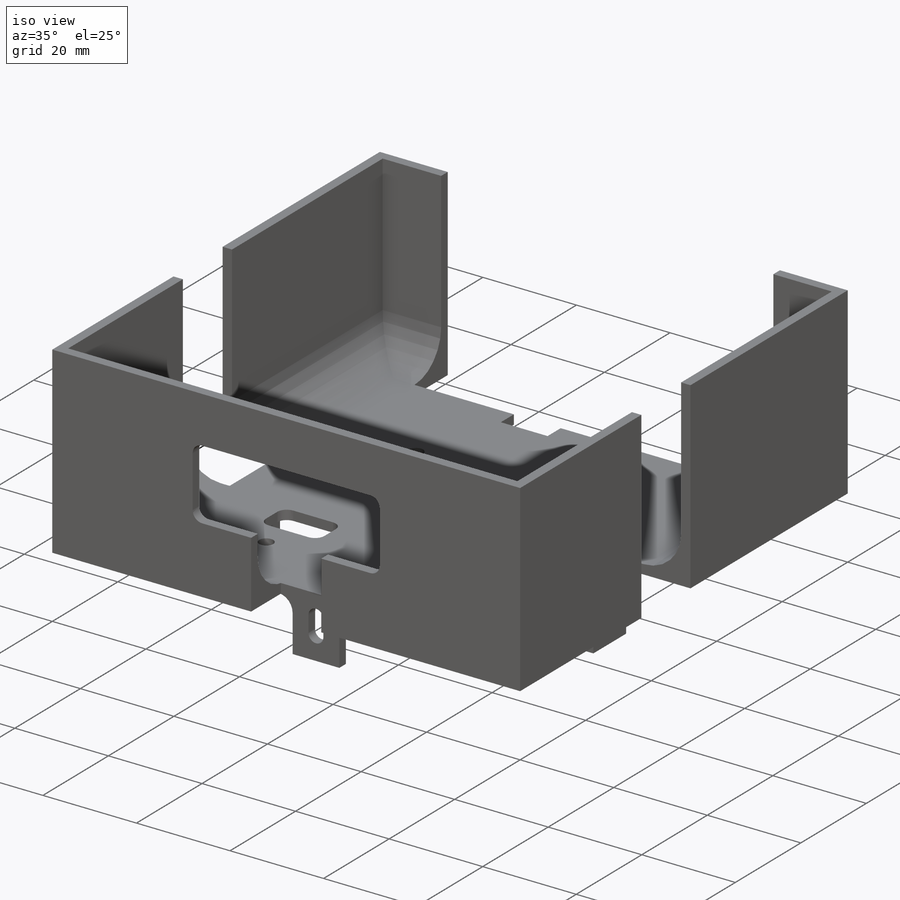
[diagram: iso view]
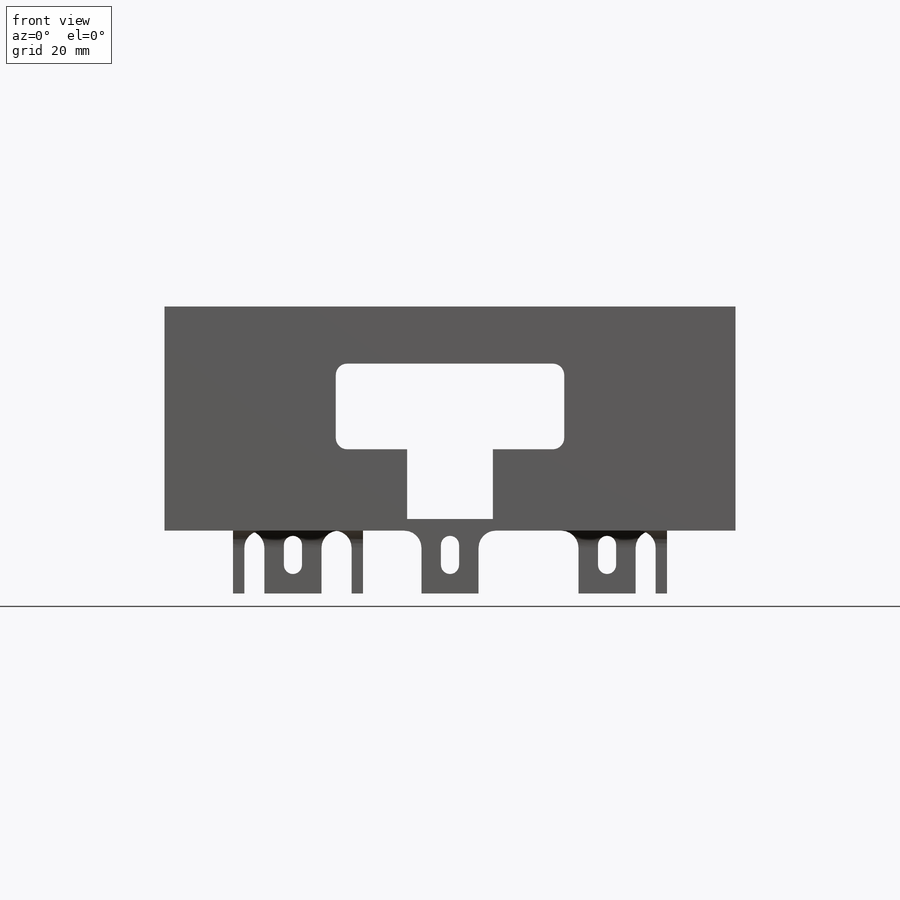
[diagram: front view]
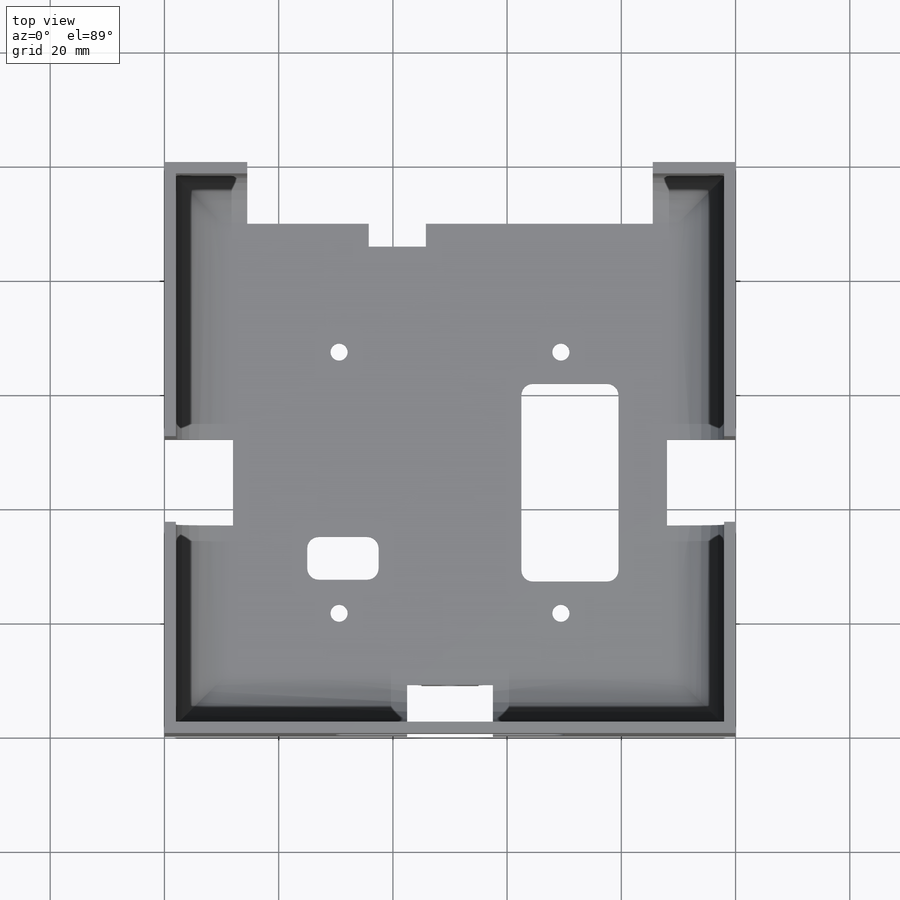
[diagram: top view]
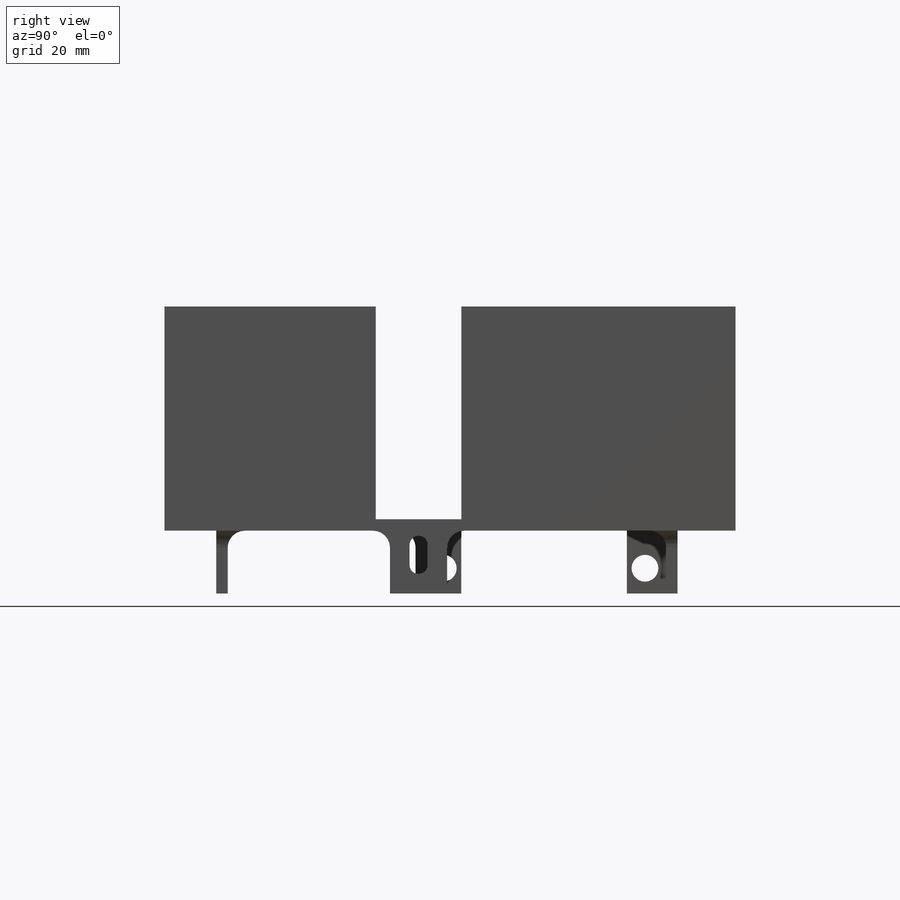
[diagram: right view]
SOLIDWORKS PART (.sldprt)
format: sldprt  version: not decoded by parser v0  size: 731,136 bytes
history: native  units: mm
features: sketch x19, cut_extrude x12, extrude x7, fillet x7, mirror x2, material x1, plane x1 (+13 scaffold rows collapsed)
feature tree (62):
  scaffold x13  (default folders/planes/origin — collapsed)
  material  "Material <not specified>"
  sketch  "Sketch1"  dims[D1=100.0mm D2=100.0mm]
  extrude  "Boss-Extrude1"  Depth=2mm
  sketch  "Sketch2"  dims[D1=2.0mm]
  extrude  "Boss-Extrude2"  Depth=37.25mm
  sketch  "Sketch3"  dims[c1.D1=15.0mm c1.D2=22.0mm c2.D1=14.5mm c2.D2=14.5mm]
  sketch  "Sketch5"  dims[D1=10.17mm D2=22.5mm D3=10.0mm D4=2.0mm]
  extrude  "Boss-Extrude3"  Depth=11mm
  sketch  "Sketch6"  dims[D1=3.18mm D2=2.5mm D3=5.0mm]
  cut_extrude  "Cut-Extrude2"  [1 undecoded]
  fillet  "Fillet1"  Radius=3mm
  plane  "Plane1"
  mirror  "Mirror1"
  cut_extrude  "Cut-Extrude3"  [1 undecoded]
  sketch  "Sketch8"  dims[D1=12.0mm D2=2.0mm D3=10.0mm D4=55.5mm]
  extrude  "Boss-Extrude4"  Depth=11mm
  sketch  "Sketch9"  dims[c1.D1=3.18mm c1.D2=~2.977232mm c1.D3=3.18mm c2.D2=2.5mm c2.D3=5.0mm]
  cut_extrude  "Cut-Extrude4"  [1 undecoded]
  fillet  "Fillet2"  Radius=3mm
  sketch  "Sketch10"  dims[D1=55.5mm D2=15.0mm]
  cut_extrude  "Cut-Extrude5"  [1 undecoded]
  mirror  "Mirror3"
  fillet  "Fillet3"  Radius=8mm
  sketch  "Sketch11"  dims[D1=9.08mm D2=2.0mm D3=10.0mm]
  extrude  "Boss-Extrude5"  Depth=11mm
  sketch  "Sketch12"  dims[c1.D3=3.18mm c1.D4=1.59mm c2.D3=1.59mm c2.D1=2.5mm c2.D2=5.0mm]
  cut_extrude  "Cut-Extrude6"  [1 undecoded]
  fillet  "Fillet4"  Radius=3mm
  sketch  "Sketch13"  dims[D1=15.0mm D2=50.0mm]
  cut_extrude  "Cut-Extrude7"  [1 undecoded]
  sketch  "Sketch15"  dims[D1=65.23mm D2=8.0mm D3=37.85mm D4=2.0mm D5=8.0mm D6=8.85mm]
  extrude  "Boss-Extrude6"  Depth=11mm
  sketch  "Sketch16"  dims[D1=4.7mm D2=6.58mm D3=4.84mm D4=4.84mm]
  cut_extrude  "Cut-Extrude8"  [1 undecoded]
  fillet  "Fillet5"  Radius=3mm
  fillet  "Fillet6"  Radius=2mm
  sketch  "Sketch17"  dims[D1=20.5mm D2=17.0mm D3=34.63mm D4=27.18mm]
  cut_extrude  "Cut-Extrude9"  [1 undecoded]
  sketch  "Sketch18"  dims[D5=3.0mm D1=21.63mm D2=45.74mm D3=38.84mm D4=19.42mm]
  cut_extrude  "Cut-Extrude10"  [1 undecoded]
  sketch  "Sketch19"  dims[D1=12.5mm D2=7.5mm D3=25.0mm D4=27.5mm]
  cut_extrude  "Cut-Extrude11"  [1 undecoded]
  fillet  "Fillet7"  Radius=2mm
  sketch  "Sketch20"  dims[D4=2.0mm D1=40.0mm D2=15.0mm D3=10.0mm]
  cut_extrude  "Cut-Extrude12"  [1 undecoded]
  sketch  "Sketch21"
  extrude  "Boss-Extrude7"  [1 undecoded]
  sketch  "Sketch22"  dims[D1=4.0mm D2=10.0mm D3=1.0mm]
  cut_extrude  "Cut-Extrude13"  [1 undecoded]
decode coverage: 31 of 47 modeling features carry decoded parameters
note: ~ marks probable driven/reference dimensions
note: 13 parameter values undecoded
summary: no parameter record found for 13 features
note: suppression state not decoded; provenance and decode notes live in map.json
